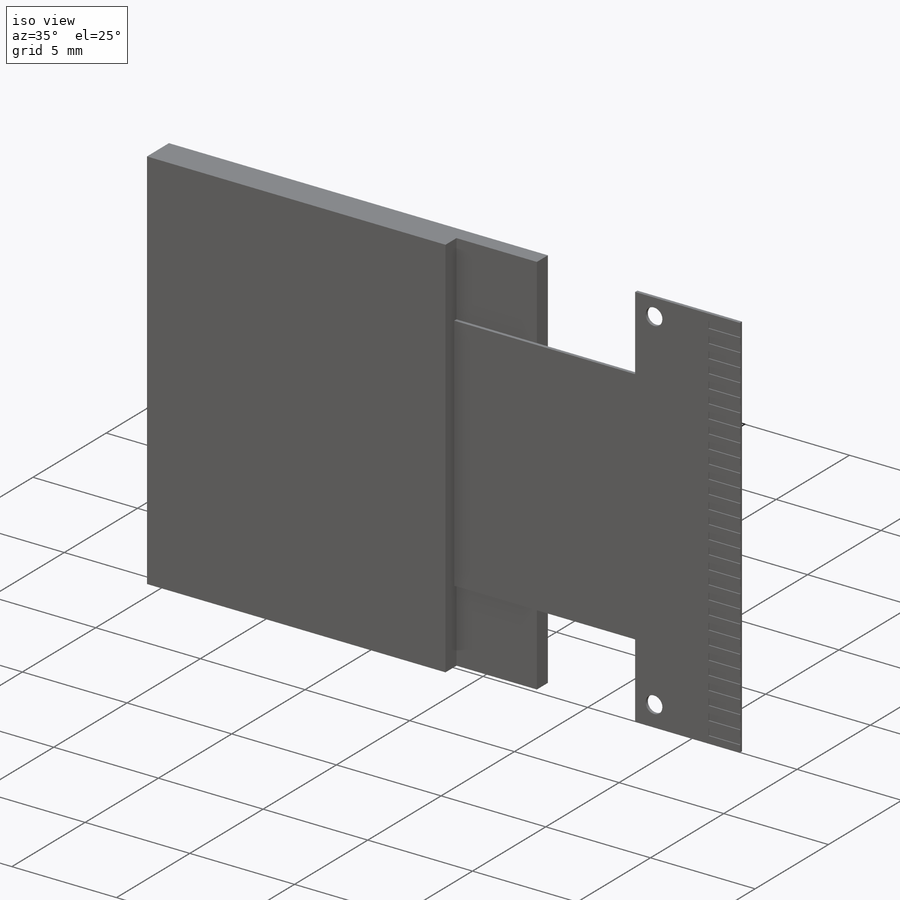
[diagram: iso view]
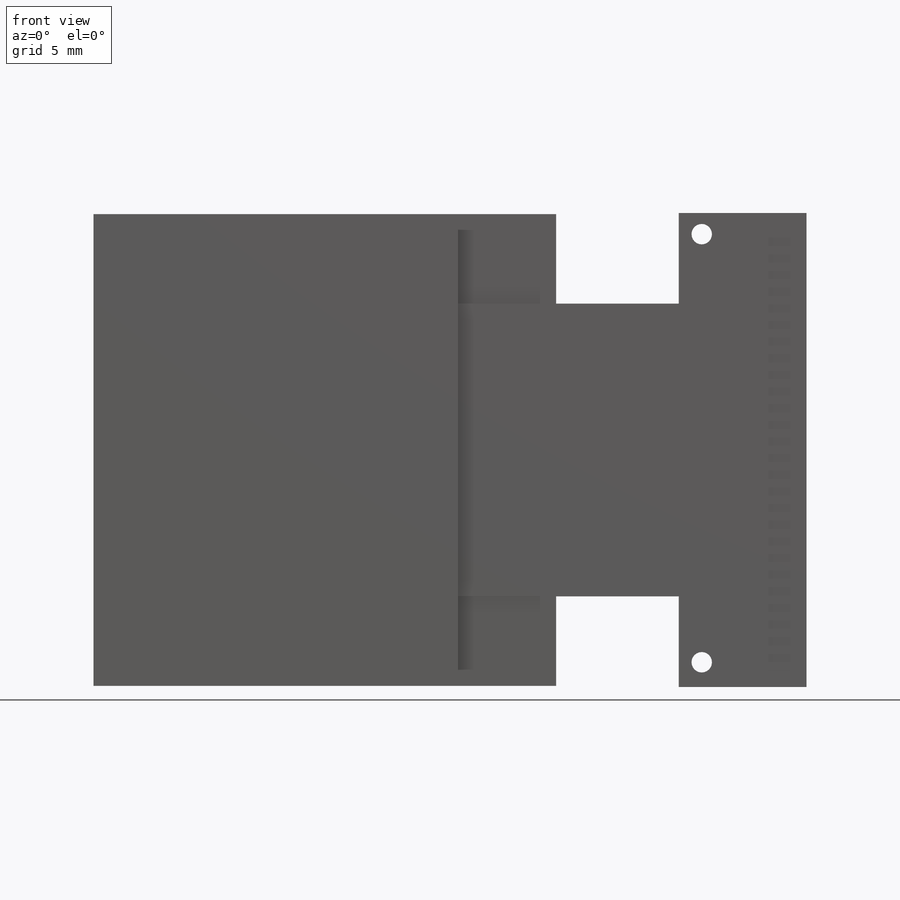
[diagram: front view]
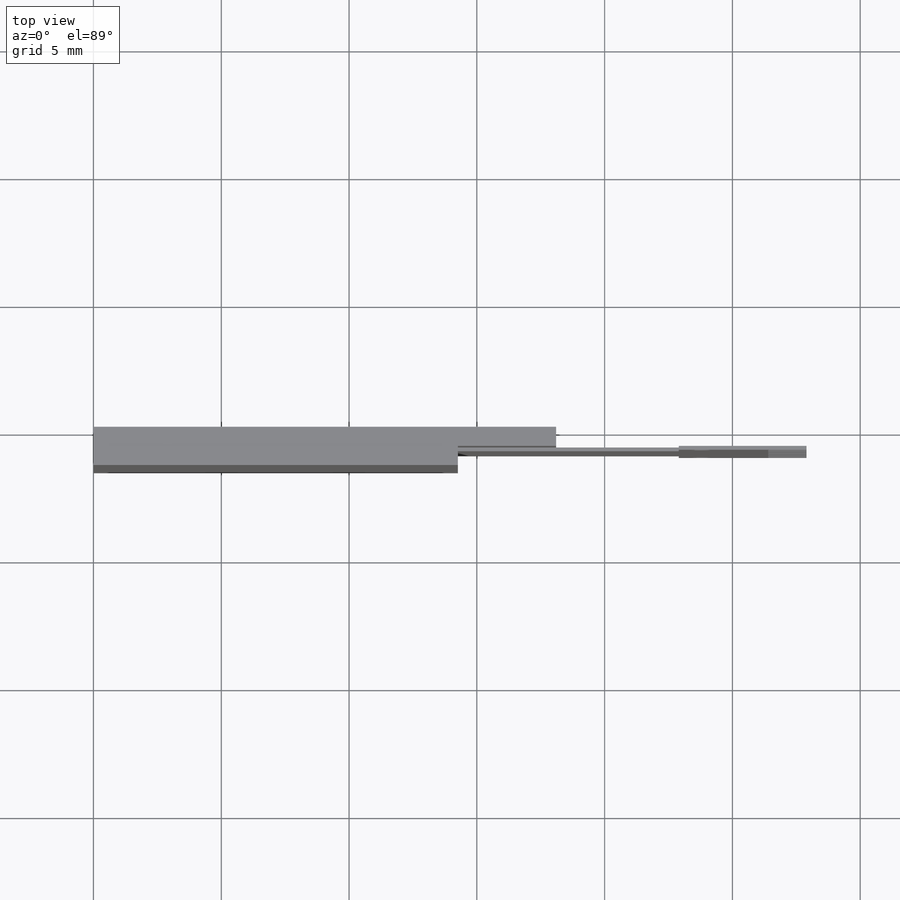
[diagram: top view]
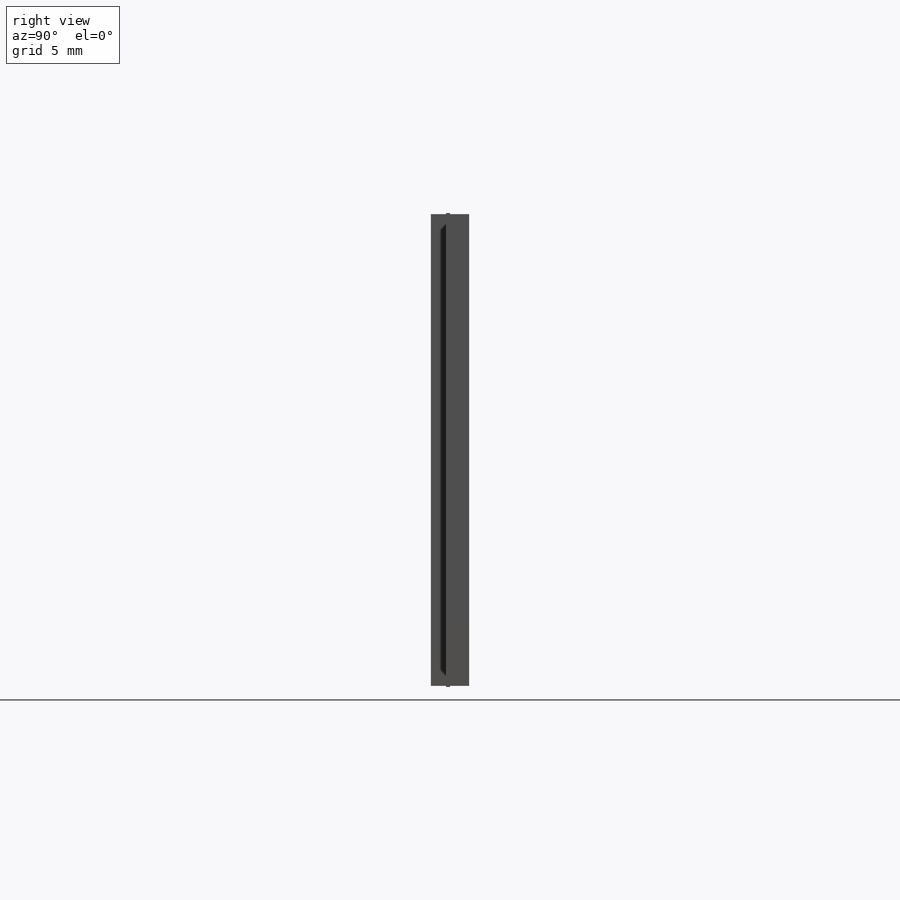
[diagram: right view]
SOLIDWORKS PART (.sldprt)
format: sldprt  version: not decoded by parser v0  size: 343,040 bytes
history: native  units: mm
features: sketch x5, cut_extrude x3, extrude x2, material x1 (+13 scaffold rows collapsed)
feature tree (24):
  scaffold x13  (default folders/planes/origin — collapsed)
  material  "Material <not specified>"
  sketch  "Sketch1"  dims[D1=18.46mm D2=18.1mm]
  extrude  "Boss-Extrude1"  Depth=1.5mm
  sketch  "Sketch2"  dims[D1=14.26mm]
  cut_extrude  "Cut-Extrude1"  Depth=0.75mm
  sketch  "Sketch3"  dims[c1.D1=13.5mm c1.D2=8.5mm c1.D3=3.6mm c1.D4=18.55mm c1.D5=11.4mm c2.D1=27.9mm c2.D2=5.0mm c3.D1=9.8mm c3.D3=18.55mm c3.D4=3.55mm c3.D5=3.55mm]
  extrude  "Boss-Extrude2"  Depth=0.15mm
  sketch  "Sketch4"  dims[D1=0.8mm D2=16.75mm D3=4.1mm]
  cut_extrude  "Cut-Extrude2"  [1 undecoded]
  sketch  "Sketch5"  dims[D1=0.32mm D2=1.5mm D3=28.0]
  cut_extrude  "Cut-Extrude6"  Depth=0.05mm
decode coverage: 9 of 10 modeling features carry decoded parameters
note: 1 parameter value undecoded
note: suppression state not decoded; provenance and decode notes live in map.json
